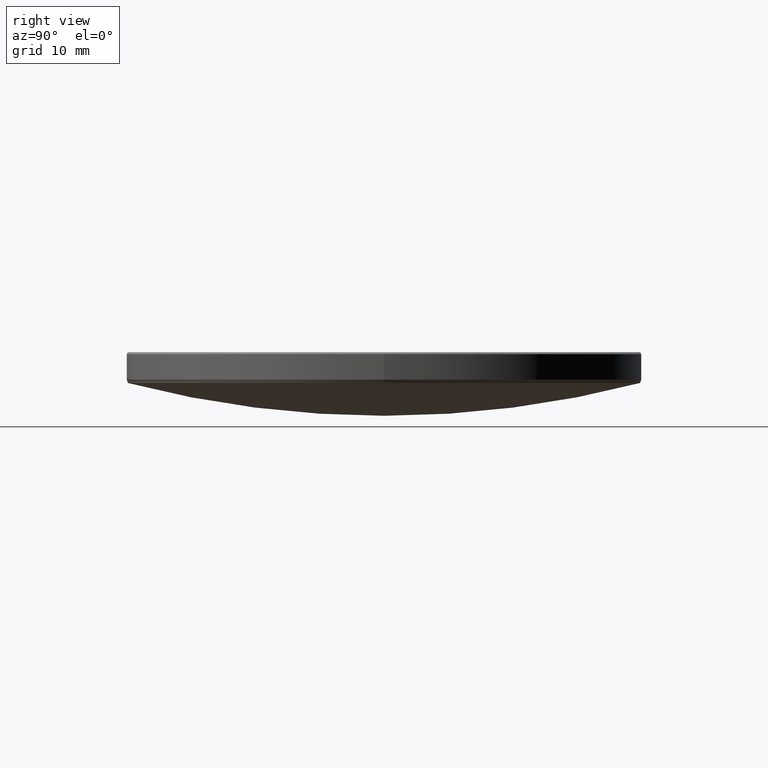
[diagram: clean part render]
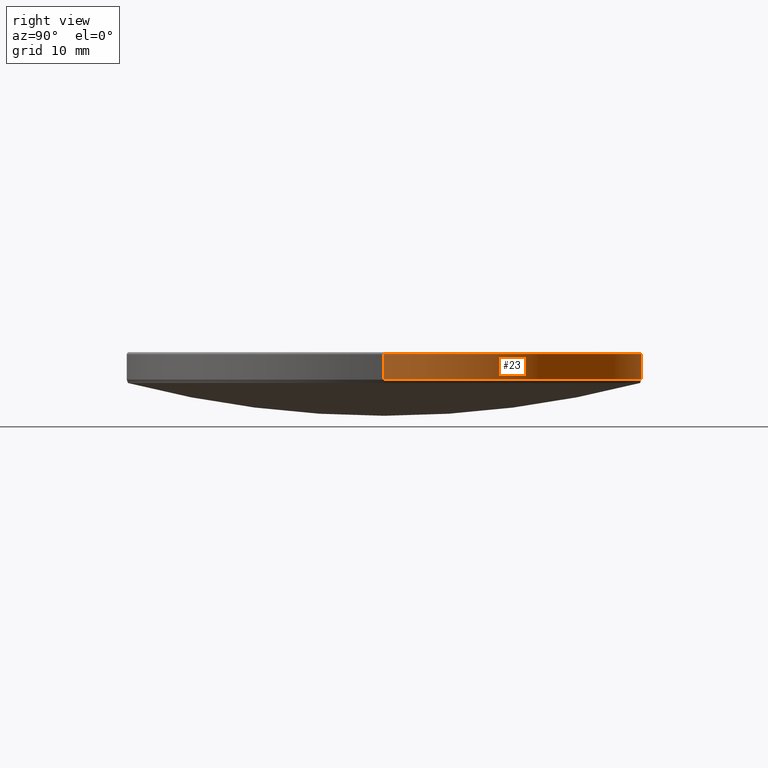
[diagram: same view with one face highlighted and labeled with its STEP entity id]
A machine part, right view. The second image highlights one B-rep face of the part: STEP entity #23.
In plain terms, the highlighted cylindrical surface (partial cylindrical patch) has radius 25.4 mm, axis along (-0, -0, -1).
Its self-contained STEP definition (entity closure, byte-faithful):
#9 = EDGE_LOOP ( 'NONE', ( #24, #288, #215, #254 ) ) ;
#23 = ADVANCED_FACE ( 'NONE', ( #103 ), #307, .T. ) ;
#24 = ORIENTED_EDGE ( 'NONE', *, *, #290, .T. ) ;
#32 = CARTESIAN_POINT ( 'NONE',  ( -25.39999999999999858, 0.000000000000000000, 13.28032383718598375 ) ) ;
#35 = CARTESIAN_POINT ( 'NONE',  ( 25.39999999999999858, 3.110602869834276865E-15, 20.00000000000000000 ) ) ;
#40 = LINE ( 'NONE', #35, #220 ) ;
#45 = CARTESIAN_POINT ( 'NONE',  ( 0.000000000000000000, 0.000000000000000000, 20.00000000000000000 ) ) ;
#60 = DIRECTION ( 'NONE',  ( -0.000000000000000000, -0.000000000000000000, -1.000000000000000000 ) ) ;
#61 = AXIS2_PLACEMENT_3D ( 'NONE', #45, #210, #232 ) ;
#63 = VECTOR ( 'NONE', #60, 1000.000000000000000 ) ;
#67 = DIRECTION ( 'NONE',  ( 1.000000000000000000, 0.000000000000000000, 0.000000000000000000 ) ) ;
#78 = VERTEX_POINT ( 'NONE', #224 ) ;
#94 = DIRECTION ( 'NONE',  ( -0.000000000000000000, -0.000000000000000000, 1.000000000000000000 ) ) ;
#103 = FACE_OUTER_BOUND ( 'NONE', #9, .T. ) ;
#104 = CIRCLE ( 'NONE', #198, 25.39999999999999858 ) ;
#132 = AXIS2_PLACEMENT_3D ( 'NONE', #263, #94, #173 ) ;
#148 = DIRECTION ( 'NONE',  ( -0.000000000000000000, -0.000000000000000000, -1.000000000000000000 ) ) ;
#163 = EDGE_CURVE ( 'NONE', #253, #277, #319, .T. ) ;
#173 = DIRECTION ( 'NONE',  ( -1.000000000000000000, 0.000000000000000000, 0.000000000000000000 ) ) ;
#178 = LINE ( 'NONE', #252, #63 ) ;
#197 = VERTEX_POINT ( 'NONE', #268 ) ;
#198 = AXIS2_PLACEMENT_3D ( 'NONE', #248, #202, #67 ) ;
#202 = DIRECTION ( 'NONE',  ( 0.000000000000000000, 0.000000000000000000, -1.000000000000000000 ) ) ;
#205 = CARTESIAN_POINT ( 'NONE',  ( 25.39999999999999858, 3.110602869834276865E-15, 13.28032383718598375 ) ) ;
#210 = DIRECTION ( 'NONE',  ( -0.000000000000000000, -0.000000000000000000, -1.000000000000000000 ) ) ;
#215 = ORIENTED_EDGE ( 'NONE', *, *, #163, .T. ) ;
#220 = VECTOR ( 'NONE', #148, 1000.000000000000000 ) ;
#224 = CARTESIAN_POINT ( 'NONE',  ( 25.39999999999999858, 3.110602869834276865E-15, 15.79999999999998117 ) ) ;
#232 = DIRECTION ( 'NONE',  ( -1.000000000000000000, 0.000000000000000000, 0.000000000000000000 ) ) ;
#236 = EDGE_CURVE ( 'NONE', #197, #277, #178, .T. ) ;
#239 = EDGE_CURVE ( 'NONE', #78, #253, #40, .T. ) ;
#248 = CARTESIAN_POINT ( 'NONE',  ( 0.000000000000000000, 0.000000000000000000, 15.79999999999998117 ) ) ;
#252 = CARTESIAN_POINT ( 'NONE',  ( -25.39999999999999858, 0.000000000000000000, 20.00000000000000000 ) ) ;
#253 = VERTEX_POINT ( 'NONE', #205 ) ;
#254 = ORIENTED_EDGE ( 'NONE', *, *, #236, .F. ) ;
#263 = CARTESIAN_POINT ( 'NONE',  ( 0.000000000000000000, 0.000000000000000000, 13.28032383718598375 ) ) ;
#268 = CARTESIAN_POINT ( 'NONE',  ( -25.39999999999999858, 0.000000000000000000, 15.79999999999998117 ) ) ;
#277 = VERTEX_POINT ( 'NONE', #32 ) ;
#288 = ORIENTED_EDGE ( 'NONE', *, *, #239, .T. ) ;
#290 = EDGE_CURVE ( 'NONE', #197, #78, #104, .T. ) ;
#307 = CYLINDRICAL_SURFACE ( 'NONE', #61, 25.39999999999999858 ) ;
#319 = CIRCLE ( 'NONE', #132, 25.39999999999999858 ) ;